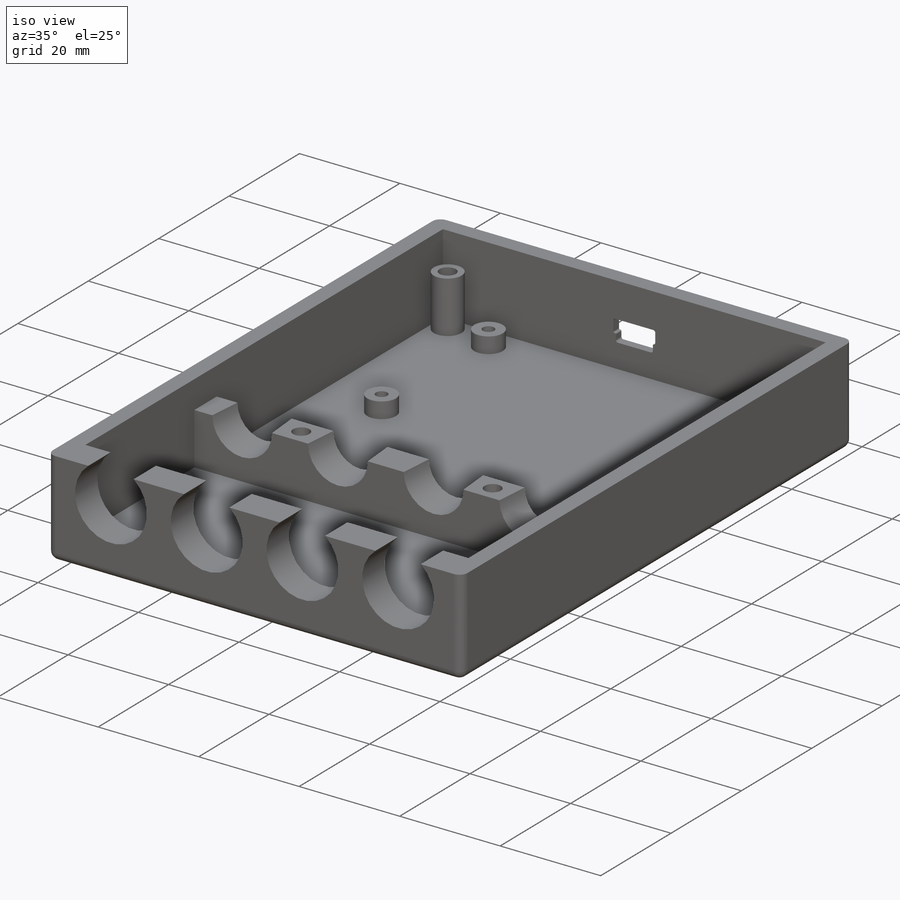
[diagram: iso view]
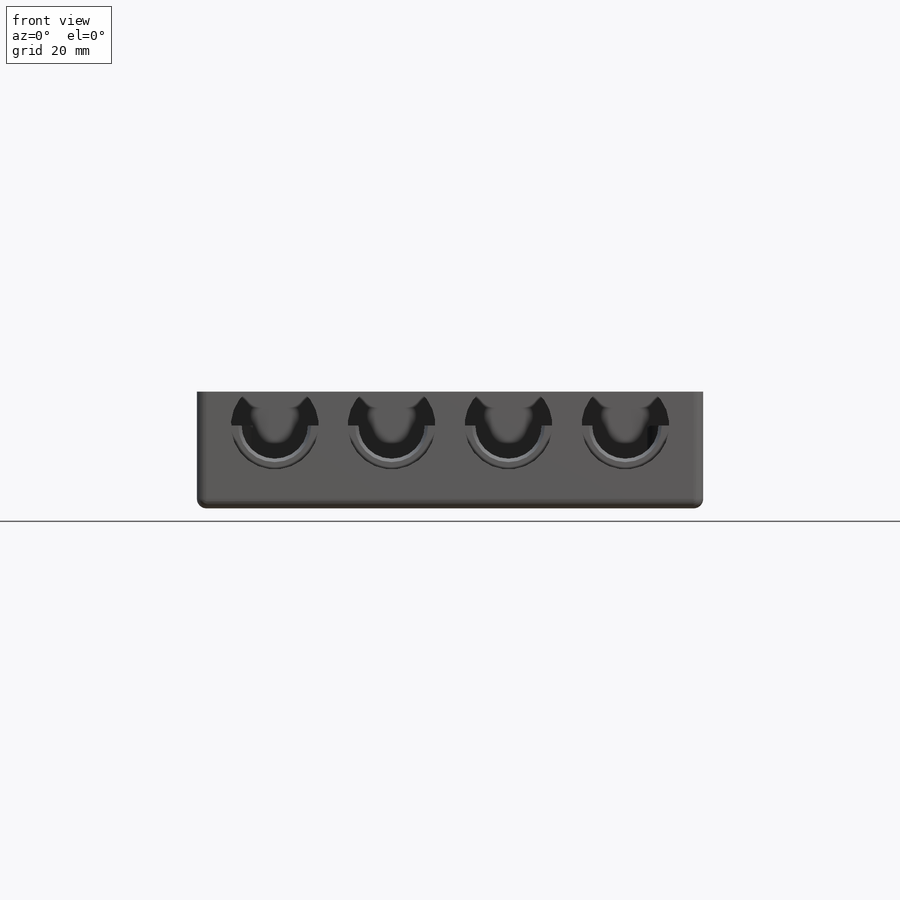
[diagram: front view]
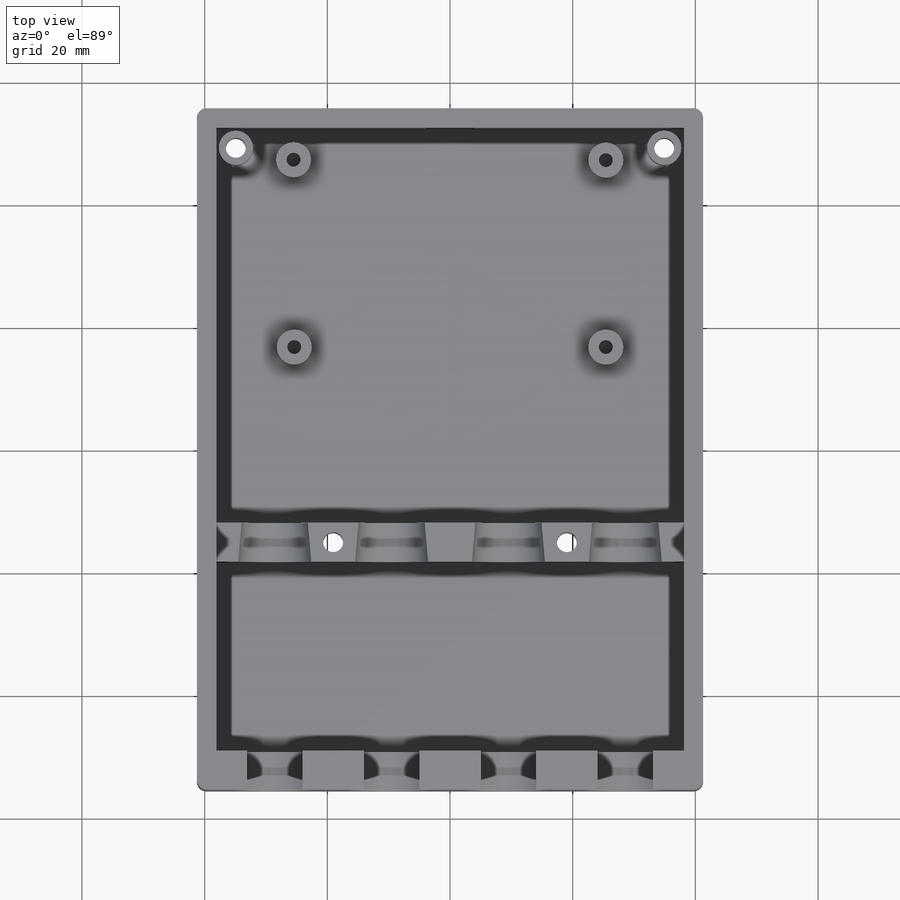
[diagram: top view]
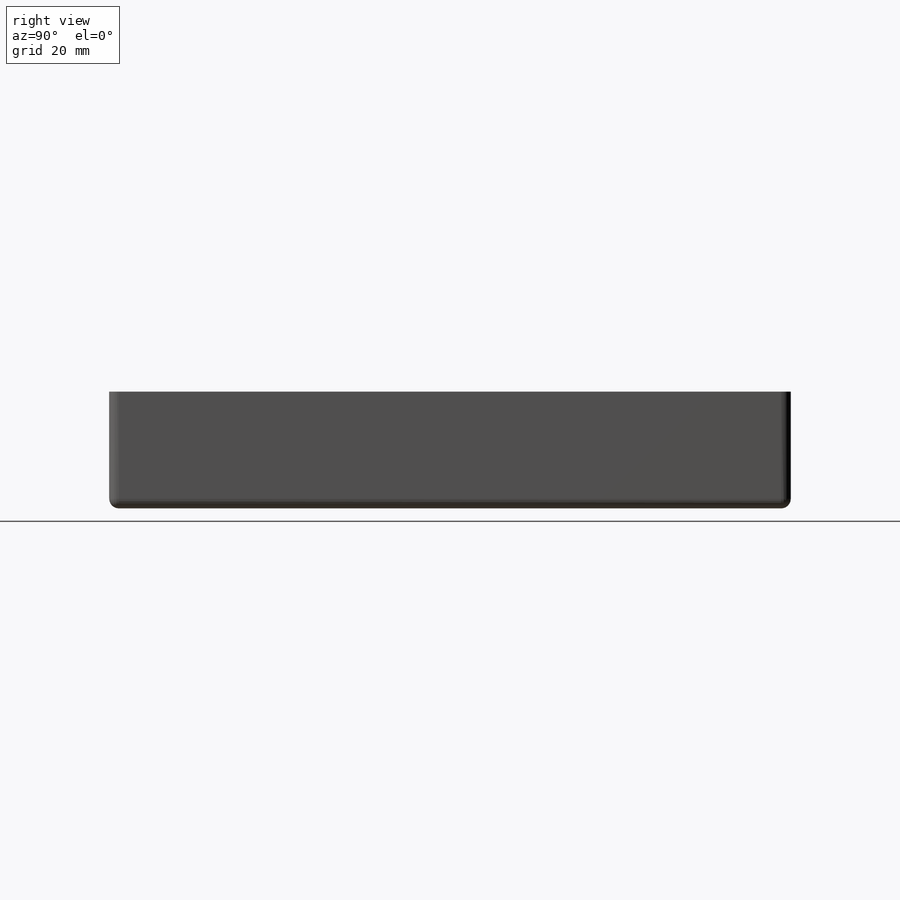
[diagram: right view]
SOLIDWORKS PART (.sldprt)
format: sldprt  version: not decoded by parser v0  size: 1,091,584 bytes
history: native  units: mm
features: sketch x18, cut_extrude x5, fillet x4, thread x4, extrude x3, hole x2, material x1 (+11 scaffold rows collapsed)
feature tree (48):
  scaffold x11  (default folders/planes/origin — collapsed)
  material  "Material <not specified>"
  sketch  "Sketch1"  dims[D1=82.55mm D2=111.125mm]
  extrude  "Boss-Extrude1"  Depth=19.05mm
  sketch  "Sketch11"  dims[D1=12.7mm D2=3.175mm D3=9.525mm D4=19.05mm D5=19.05mm D6=19.05mm D7=3.175mm D8=9.525mm D9=14.3002mm D10=14.3002mm D11=14.3002mm D12=14.3002mm]
  sketch  "Sketch14"  dims[D1=1.5875mm D2=101.6mm D3=76.2mm]
  cut_extrude  "Cut-Extrude3"  Depth=3.175mm
  cut_extrude  "Cut-Extrude4"  [1 undecoded]
  sketch  "Sketch16"
  sketch  "ControllerCenter"
  sketch  "Sketch17"  dims[D5=~5.55625mm D1=~30.95625mm D2=6.35mm D3=3.175mm D4=3.175mm]
  extrude  "Boss-Extrude4"  [1 undecoded]
  sketch  "Sketch18"  dims[D6=~11.90625mm D7=~11.90625mm D8=~11.90625mm D9=~11.90625mm D1=9.525mm D2=19.05mm D3=19.05mm D4=19.05mm D5=9.525mm]
  cut_extrude  "Cut-Extrude5"  [1 undecoded]
  sketch  "Sketch19"  dims[c1.D7=5.08mm c1.D8=5.715mm c1.D9=5.715mm c1.D10=5.715mm c2.D7=5.715mm c2.D1=50.8mm c2.D2=12.7mm c2.D3=5.08mm c2.D4=5.08mm c2.D5=30.48mm c2.D6=30.48mm c2.D11=0.1143mm c2.D12=0.0635mm]
  sketch  "Sketch21"  dims[c1.D1=7.9375mm c1.D2=~3.96875mm c1.D3=~3.96875mm c1.D4=3.683mm c1.D5=3.683mm c1.D6=~1.984375mm c2.D1=7.366mm c2.D2=7.9375mm c2.D3=~1.984375mm c2.D4=~1.984375mm c3.D1=~4.167187mm c3.D2=3.683mm c3.D3=1.5875mm c3.D4=~2.579687mm c3.D5=~3.96875mm]
  cut_extrude  "Cut-Extrude7"  [1 undecoded]
  fillet  "Fillet6"  Radius=1.5875mm
  sketch  "Sketch25"  dims[D1=3.175mm D2=1.5875mm]
  sketch  "BoardTop"
  extrude  "Boss-Extrude8"  Depth=1.5875mm
  sketch  "HoleLocations"  dims[D1=~1.916282mm D2=~1.916282mm D3=~1.916282mm D4=~1.916282mm]
  sketch  "HoleLocationsUnder"
  hole  "CBORE for #4 Pan Head Machine Screw3"  Diameter=3.2639mm Depth=19.05mm
  sketch  "Sketch34"
  sketch  "Sketch35"  dims[hole-wizard template sketch: 42 standard entries collapsed; hole parameters kept: c12.Thru Hole Depth=19.05mm c12.C'Bore Dia.=6.35mm c12.C'Bore Depth=2.032mm]
  hole  "#4-40 Tapped Hole1"  Diameter=2.2606mm Depth=4.7752mm
  sketch  "Sketch37"
  sketch  "Sketch38"  dims[hole-wizard template sketch: 47 standard entries collapsed; hole parameters kept: c15.Tap Drill Depth=4.7752mm c15.D3=~14.816244mm c15.Drill Angle=118.0deg]
  thread  "Hole Thread1"  Diameter=4.7752mm  [1 undecoded]
  thread  "Hole Thread2"  Diameter=4.7752mm  [1 undecoded]
  thread  "Hole Thread3"  Diameter=4.7752mm  [1 undecoded]
  thread  "Hole Thread4"  Diameter=4.7752mm  [1 undecoded]
  sketch  "Sketch39"  dims[D1=14.2875mm D2=17.4625mm]
  cut_extrude  "Cut-Extrude8"  Depth=1.5875mm
  fillet  "Fillet7"  Radius=0.79375mm
  fillet  "Fillet8"  Radius=0.198437mm
  fillet  "Fillet9"  Radius=0.396875mm
decode coverage: 26 of 36 modeling features carry decoded parameters
note: ~ marks probable driven/reference dimensions
note: 8 parameter values undecoded
summary: no parameter record found for 4 features
note: suppression state not decoded; provenance and decode notes live in map.json
